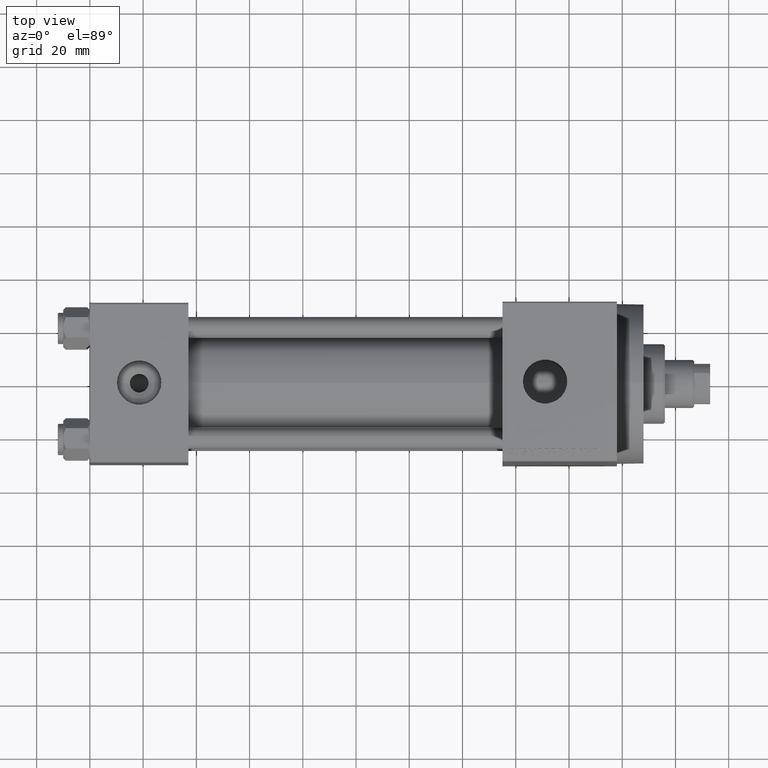
[diagram: clean part render]
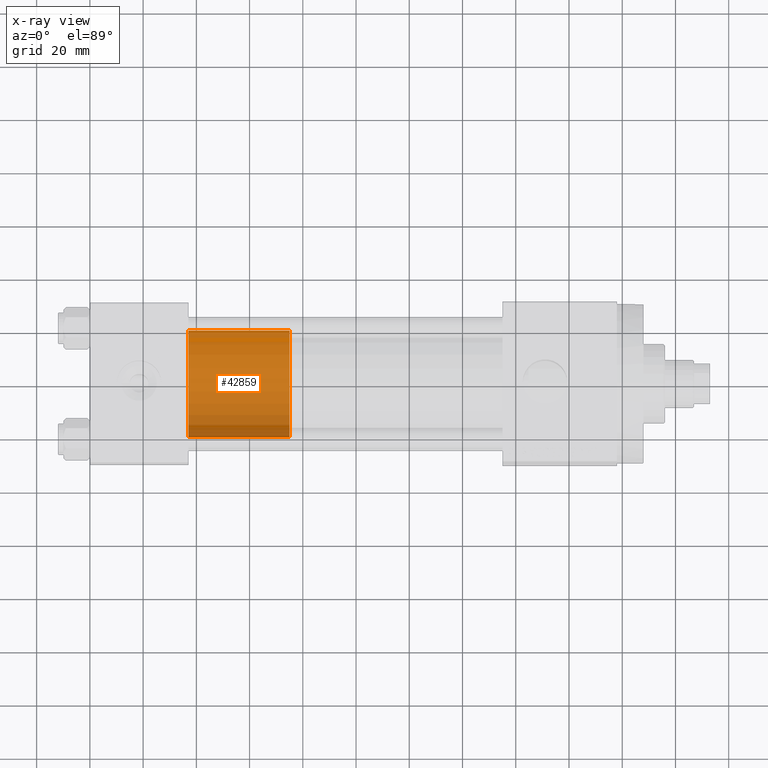
[diagram: x-ray — body ghosted, one internal face saturated and labeled with its STEP entity id]
A machine part, top view, then the same camera in x-ray: the body is ghosted and one INTERNAL B-rep face — a face not visible from any outside direction — is saturated and labeled: STEP entity #42859.
In plain terms, the highlighted cylindrical surface (partial cylindrical patch) has radius 20 mm, axis along (-1, 0, 0).
Its self-contained STEP definition (entity closure, byte-faithful):
#236 = EDGE_LOOP ( 'NONE', ( #42621, #39981, #15497, #43660 ) ) ;
#612 = CARTESIAN_POINT ( 'NONE',  ( 20.00000000000000000, 2.449293598294706513E-15, 38.00000000000000000 ) ) ;
#924 = AXIS2_PLACEMENT_3D ( 'NONE', #8068, #11646, #30023 ) ;
#1090 = CYLINDRICAL_SURFACE ( 'NONE', #13336, 20.00000000000000000 ) ;
#6600 = EDGE_CURVE ( 'NONE', #22818, #11442, #16410, .T. ) ;
#8068 = CARTESIAN_POINT ( 'NONE',  ( 0.000000000000000000, 0.000000000000000000, 38.00000000000000000 ) ) ;
#11363 = EDGE_CURVE ( 'NONE', #40187, #22818, #41378, .T. ) ;
#11442 = VERTEX_POINT ( 'NONE', #21316 ) ;
#11646 = DIRECTION ( 'NONE',  ( 0.000000000000000000, 0.000000000000000000, 1.000000000000000000 ) ) ;
#11852 = AXIS2_PLACEMENT_3D ( 'NONE', #35295, #12368, #24314 ) ;
#12368 = DIRECTION ( 'NONE',  ( 0.000000000000000000, 0.000000000000000000, 1.000000000000000000 ) ) ;
#13260 = DIRECTION ( 'NONE',  ( -1.000000000000000000, 0.000000000000000000, 0.000000000000000000 ) ) ;
#13336 = AXIS2_PLACEMENT_3D ( 'NONE', #39051, #17321, #13260 ) ;
#15497 = ORIENTED_EDGE ( 'NONE', *, *, #6600, .T. ) ;
#15533 = DIRECTION ( 'NONE',  ( -0.000000000000000000, -0.000000000000000000, -1.000000000000000000 ) ) ;
#16410 = CIRCLE ( 'NONE', #11852, 20.00000000000000000 ) ;
#16604 = FACE_OUTER_BOUND ( 'NONE', #236, .T. ) ;
#17321 = DIRECTION ( 'NONE',  ( -0.000000000000000000, -0.000000000000000000, -1.000000000000000000 ) ) ;
#17871 = EDGE_CURVE ( 'NONE', #26931, #11442, #20065, .T. ) ;
#18619 = CARTESIAN_POINT ( 'NONE',  ( -20.00000000000000000, 0.000000000000000000, 38.00000000000000000 ) ) ;
#19888 = DIRECTION ( 'NONE',  ( -0.000000000000000000, -0.000000000000000000, -1.000000000000000000 ) ) ;
#20065 = LINE ( 'NONE', #45370, #42735 ) ;
#21316 = CARTESIAN_POINT ( 'NONE',  ( -20.00000000000000000, 0.000000000000000000, 0.000000000000000000 ) ) ;
#21539 = CIRCLE ( 'NONE', #924, 20.00000000000000000 ) ;
#22818 = VERTEX_POINT ( 'NONE', #45710 ) ;
#23699 = CARTESIAN_POINT ( 'NONE',  ( 20.00000000000000000, 2.449293598294706513E-15, 38.00000000000000000 ) ) ;
#24314 = DIRECTION ( 'NONE',  ( 1.000000000000000000, 0.000000000000000000, 0.000000000000000000 ) ) ;
#26482 = VECTOR ( 'NONE', #19888, 1000.000000000000000 ) ;
#26931 = VERTEX_POINT ( 'NONE', #18619 ) ;
#30023 = DIRECTION ( 'NONE',  ( 1.000000000000000000, 0.000000000000000000, 0.000000000000000000 ) ) ;
#32800 = EDGE_CURVE ( 'NONE', #40187, #26931, #21539, .T. ) ;
#35295 = CARTESIAN_POINT ( 'NONE',  ( 0.000000000000000000, 0.000000000000000000, 0.000000000000000000 ) ) ;
#39051 = CARTESIAN_POINT ( 'NONE',  ( 0.000000000000000000, 0.000000000000000000, 38.00000000000000000 ) ) ;
#39981 = ORIENTED_EDGE ( 'NONE', *, *, #11363, .T. ) ;
#40187 = VERTEX_POINT ( 'NONE', #612 ) ;
#41378 = LINE ( 'NONE', #23699, #26482 ) ;
#42621 = ORIENTED_EDGE ( 'NONE', *, *, #32800, .F. ) ;
#42735 = VECTOR ( 'NONE', #15533, 1000.000000000000000 ) ;
#42859 = ADVANCED_FACE ( 'NONE', ( #16604 ), #1090, .T. ) ;
#43660 = ORIENTED_EDGE ( 'NONE', *, *, #17871, .F. ) ;
#45370 = CARTESIAN_POINT ( 'NONE',  ( -20.00000000000000000, 0.000000000000000000, 38.00000000000000000 ) ) ;
#45710 = CARTESIAN_POINT ( 'NONE',  ( 20.00000000000000000, 2.449293598294706513E-15, 0.000000000000000000 ) ) ;